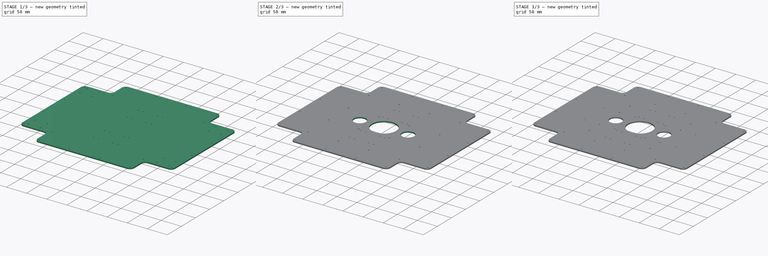
[diagram: build sequence overview — one tinted view per stage of 3, left to right]
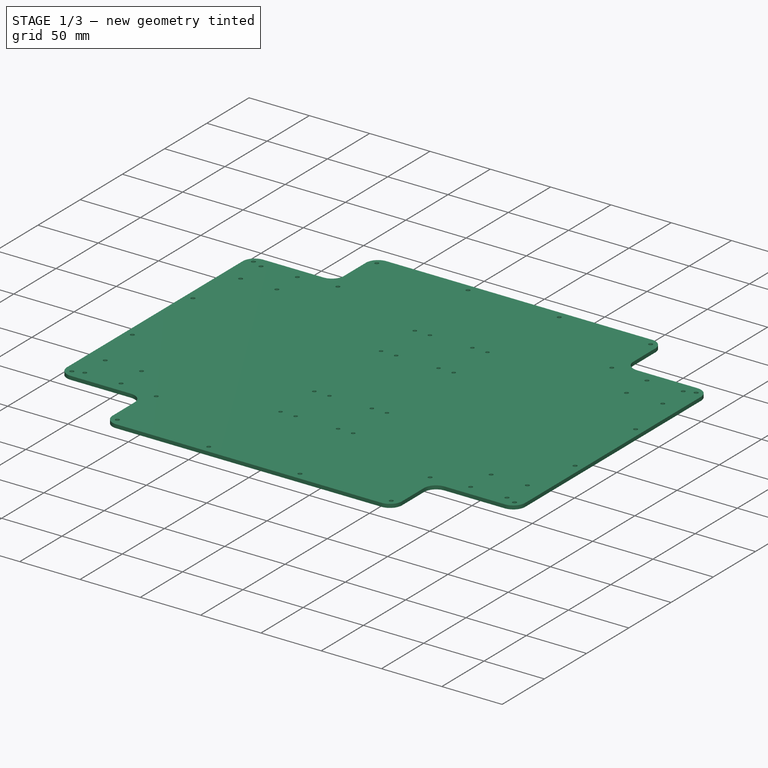
[diagram: stage 1 of 3 — iso view after this stage's code; geometry added in this stage tinted green]
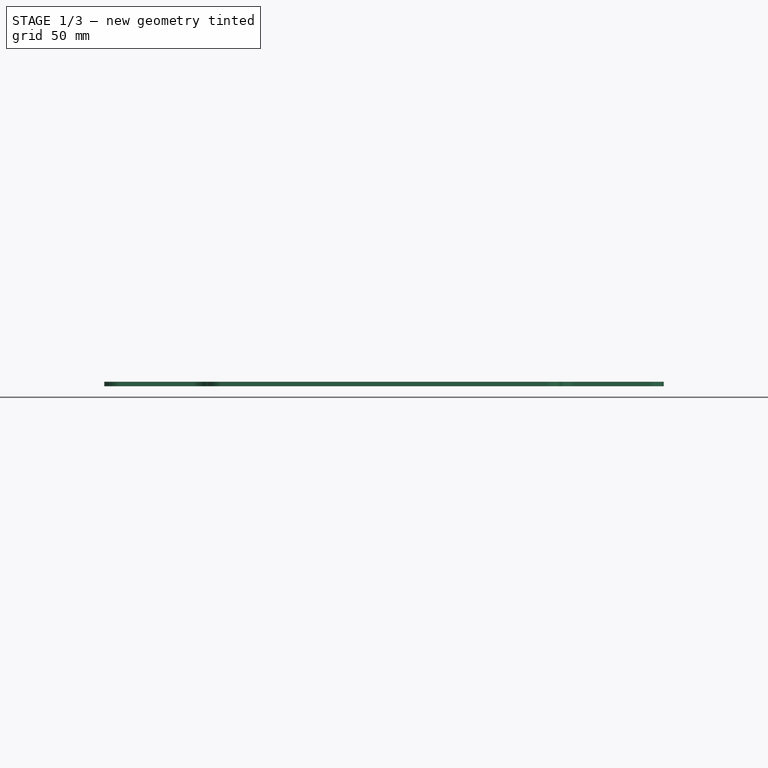
[diagram: stage 1 of 3 — front view after this stage's code; geometry added in this stage tinted green]
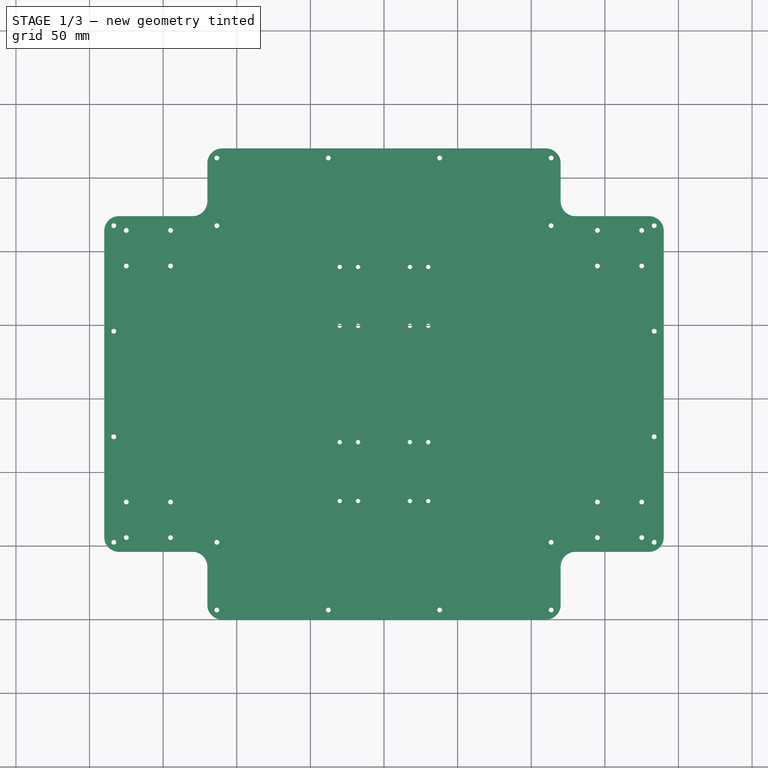
[diagram: stage 1 of 3 — top view after this stage's code; geometry added in this stage tinted green]
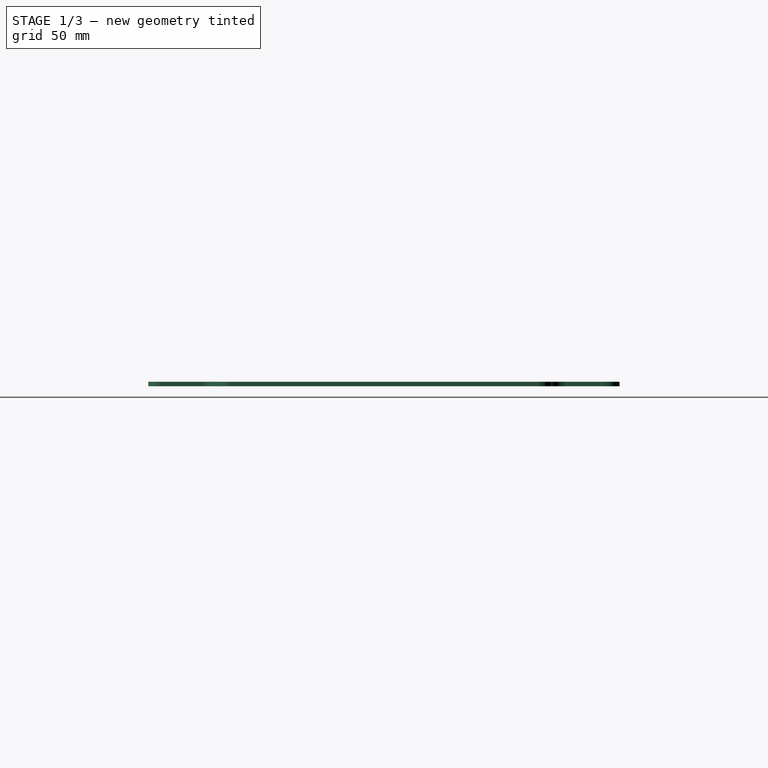
[diagram: stage 1 of 3 — right view after this stage's code; geometry added in this stage tinted green]
FCSTD DOCUMENT  (FreeCAD 1.0R39109 (Git))
Label: base_arriba_2
License: All rights reserved
LicenseURL: https://en.wikipedia.org/wiki/All_rights_reserved
objects: Sketcher::SketchObject×6, PartDesign::Pocket×5, Part::Feature×1, PartDesign::FeatureBase×1, PartDesign::Pad×1, PartDesign::Body×1
note: 34 computed .brp shape members not serialized (recipe doc carries the construction recipe); baked Part::Feature solids carry a one-line shape summary decoded from their .brp

FEATURE [Part::Feature] Part__Feature  label="base_abajo v9"
  shape: bbox 380 x 320 x 3 mm, 62 faces (baked)
FEATURE [PartDesign::FeatureBase] BaseFeature
  BaseFeature = -> Part__Feature
  Suppressed = false
FEATURE [Sketcher::SketchObject] Sketch
  ArcFitTolerance = 1e-06
  AttachmentSupport = -> [BaseFeature]
  ExternalGeometry = -> [BaseFeature]
  FullyConstrained = false
  MakeInternals = false
  MapMode = 5
  Placement = pos=(0,0,3) rot=(0,0,1;0rad)
  sketch-geometry (30):
    g0: LineSegment [constr] StartX=-190 StartY=160 StartZ=0 EndX=190 EndY=160 EndZ=0
    g1: Circle [constr] CenterX=-8.6e-15 CenterY=160 CenterZ=0 NormalX=0 NormalY=0 NormalZ=1 AngleXU=0 Radius=32
    g2: LineSegment [constr] StartX=-8.6e-15 StartY=160 StartZ=0 EndX=-8.6e-15 EndY=128 EndZ=0
    g3: LineSegment [constr] StartX=-8.6e-15 StartY=160 StartZ=0 EndX=-8.6e-15 EndY=192 EndZ=0
    g4: LineSegment [constr] StartX=-8.6e-15 StartY=192 StartZ=0 EndX=0 EndY=194.5 EndZ=0
    g5: LineSegment [constr] StartX=0 StartY=194.5 StartZ=0 EndX=35.1 EndY=194.5 EndZ=0
    g6: LineSegment [constr] StartX=0 StartY=194.5 StartZ=0 EndX=-35.1 EndY=194.5 EndZ=0
    g7: LineSegment [constr] StartX=35.1 StartY=194.5 StartZ=0 EndX=35.1 EndY=199.5 EndZ=0
    g8: LineSegment [constr] StartX=35.1 StartY=199.5 StartZ=0 EndX=30.1 EndY=199.5 EndZ=0
    g9: LineSegment [constr] StartX=-35.1 StartY=194.5 StartZ=0 EndX=-35.1 EndY=199.5 EndZ=0
    g10: LineSegment [constr] StartX=-35.1 StartY=199.5 StartZ=0 EndX=-30.1 EndY=199.5 EndZ=0
    g11: Circle CenterX=30.1 CenterY=199.5 CenterZ=0 NormalX=0 NormalY=0 NormalZ=1 AngleXU=0 Radius=1.5
    g12: Circle CenterX=-30.1 CenterY=199.5 CenterZ=0 NormalX=0 NormalY=0 NormalZ=1 AngleXU=0 Radius=1.5
    g13: LineSegment [constr] StartX=30.1 StartY=199.5 StartZ=0 EndX=17.6 EndY=199.5 EndZ=0
    g14: LineSegment [constr] StartX=-30.1 StartY=199.5 StartZ=0 EndX=-17.6 EndY=199.5 EndZ=0
    g15: Circle CenterX=17.6 CenterY=199.5 CenterZ=0 NormalX=0 NormalY=0 NormalZ=1 AngleXU=0 Radius=1.5
    g16: Circle CenterX=-17.6 CenterY=199.5 CenterZ=0 NormalX=0 NormalY=0 NormalZ=1 AngleXU=0 Radius=1.5
    g17: LineSegment [constr] StartX=30.1 StartY=199.5 StartZ=0 EndX=30.1 EndY=239.5 EndZ=0
    g18: Circle CenterX=30.1 CenterY=239.5 CenterZ=0 NormalX=0 NormalY=0 NormalZ=1 AngleXU=0 Radius=1.5
    g19: Circle CenterX=17.6 CenterY=239.5 CenterZ=0 NormalX=0 NormalY=0 NormalZ=1 AngleXU=0 Radius=1.5
    g20: Circle CenterX=-17.6 CenterY=239.5 CenterZ=0 NormalX=0 NormalY=0 NormalZ=1 AngleXU=0 Radius=1.5
    g21: Circle CenterX=-30.1 CenterY=239.5 CenterZ=0 NormalX=0 NormalY=0 NormalZ=1 AngleXU=0 Radius=1.5
    g22: Circle CenterX=-30.1 CenterY=80.5 CenterZ=0 NormalX=0 NormalY=0 NormalZ=1 AngleXU=0 Radius=1.5
    g23: Circle CenterX=-17.6 CenterY=80.5 CenterZ=0 NormalX=0 NormalY=0 NormalZ=1 AngleXU=0 Radius=1.5
    g24: Circle CenterX=17.6 CenterY=80.5 CenterZ=0 NormalX=0 NormalY=0 NormalZ=1 AngleXU=0 Radius=1.5
    g25: Circle CenterX=30.1 CenterY=80.5 CenterZ=0 NormalX=0 NormalY=0 NormalZ=1 AngleXU=0 Radius=1.5
    g26: Circle CenterX=30.1 CenterY=120.5 CenterZ=0 NormalX=0 NormalY=0 NormalZ=1 AngleXU=0 Radius=1.5
    g27: Circle CenterX=17.6 CenterY=120.5 CenterZ=0 NormalX=0 NormalY=0 NormalZ=1 AngleXU=0 Radius=1.5
    g28: Circle CenterX=-17.6 CenterY=120.5 CenterZ=0 NormalX=0 NormalY=0 NormalZ=1 AngleXU=0 Radius=1.5
    g29: Circle CenterX=-30.1 CenterY=120.5 CenterZ=0 NormalX=0 NormalY=0 NormalZ=1 AngleXU=0 Radius=1.5
  constraints (68):
    c: Symmetric(g-3,g-3,g0)
    c: Symmetric(g-4,g-4,g0)
    c: Diameter(g1) = 64
    c: Symmetric(g0,g0,g1)
    c: Coincident(g2,g1)
    c: PointOnObject(g2,g1)
    c: Vertical(g2)
    c: Coincident(g3,g1)
    c: PointOnObject(g3,g1)
    c: Vertical(g3)
    c: Distance(g4) = 2.5
    c: Coincident(g4,g3)
    c: PointOnObject(g4,g-2)
    c: Distance(g5) = 35.1
    c: Coincident(g5,g4)
    c: Horizontal(g5)
    c: Coincident(g6,g4)
    c: Horizontal(g6)
    c: Equal(g6,g5)
    c: Distance(g7) = 5
    c: Coincident(g7,g5)
    c: Vertical(g7)
    c: Distance(g8) = 5
    c: Coincident(g8,g7)
    c: Horizontal(g8)
    c: Coincident(g9,g6)
    c: Vertical(g9)
    c: Equal(g9,g7)
    c: Coincident(g10,g9)
    c: Horizontal(g10)
    c: Equal(g10,g8)
    c: Diameter(g11) = 3
    c: Coincident(g11,g8)
    c: Coincident(g12,g10)
    c: Equal(g12,g11)
    c: Distance(g13) = 12.5
    c: Coincident(g13,g8)
    c: Horizontal(g13)
    c: Coincident(g14,g10)
    c: Horizontal(g14)
    c: Equal(g14,g13)
    c: Coincident(g15,g13)
    c: Coincident(g16,g14)
    c: Equal(g15,g11)
    c: Equal(g16,g11)
    c: Distance(g17) = 40
    c: Coincident(g17,g8)
    c: Vertical(g17)
    c: Diameter(g18) = 3
    c: Equal(g21,g18)
    c: Equal(g19,g18)
    c: Equal(g20,g18)
    c: Equal(g11,g26)
    c: Symmetric(g11,g26,g0)
    c: Equal(g12,g29)
    c: Symmetric(g12,g29,g0)
    c: Equal(g15,g27)
    c: Symmetric(g15,g27,g0)
    c: Equal(g16,g28)
    c: Symmetric(g16,g28,g0)
    c: Equal(g18,g25)
    c: Symmetric(g18,g25,g0)
    c: Equal(g19,g24)
    c: Symmetric(g19,g24,g0)
    c: Equal(g20,g23)
    c: Symmetric(g20,g23,g0)
    c: Equal(g21,g22)
    c: Symmetric(g21,g22,g0)
FEATURE [PartDesign::Pocket] Pocket
  BaseFeature = -> BaseFeature
  Direction = (0,0,-1)
  Length = 16
  Length2 = 5
  Profile = -> Sketch
  ReferenceAxis = -> Sketch [N_Axis]
  Refine = true
  Suppressed = false
  Type = 0
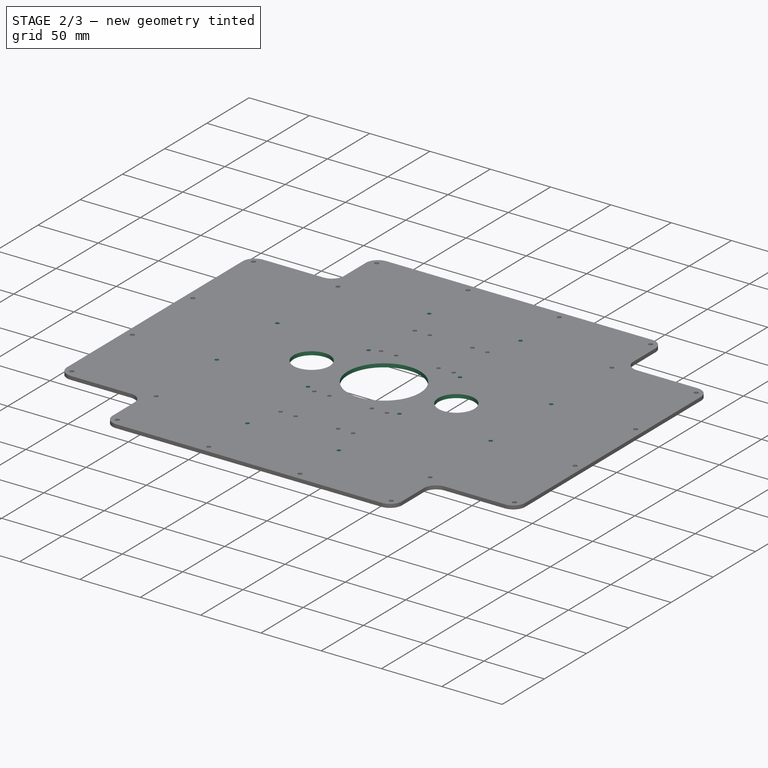
[diagram: stage 2 of 3 — iso view after this stage's code; geometry added in this stage tinted green]
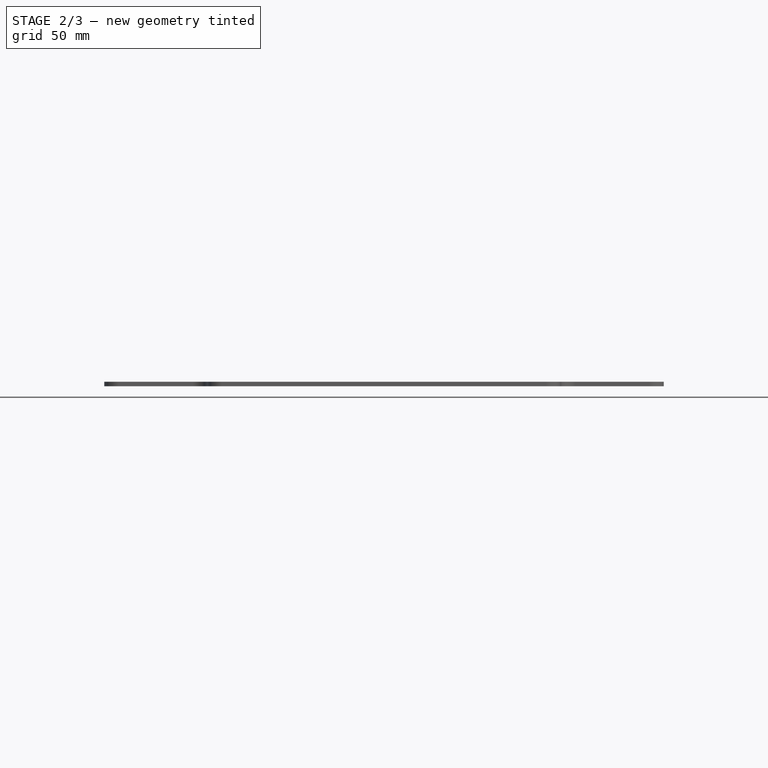
[diagram: stage 2 of 3 — front view after this stage's code; geometry added in this stage tinted green]
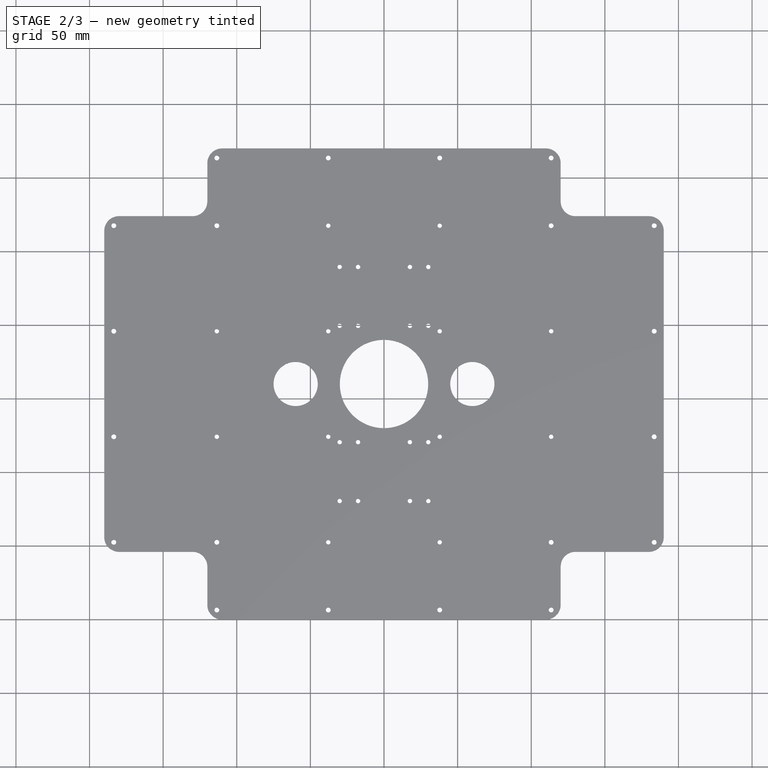
[diagram: stage 2 of 3 — top view after this stage's code; geometry added in this stage tinted green]
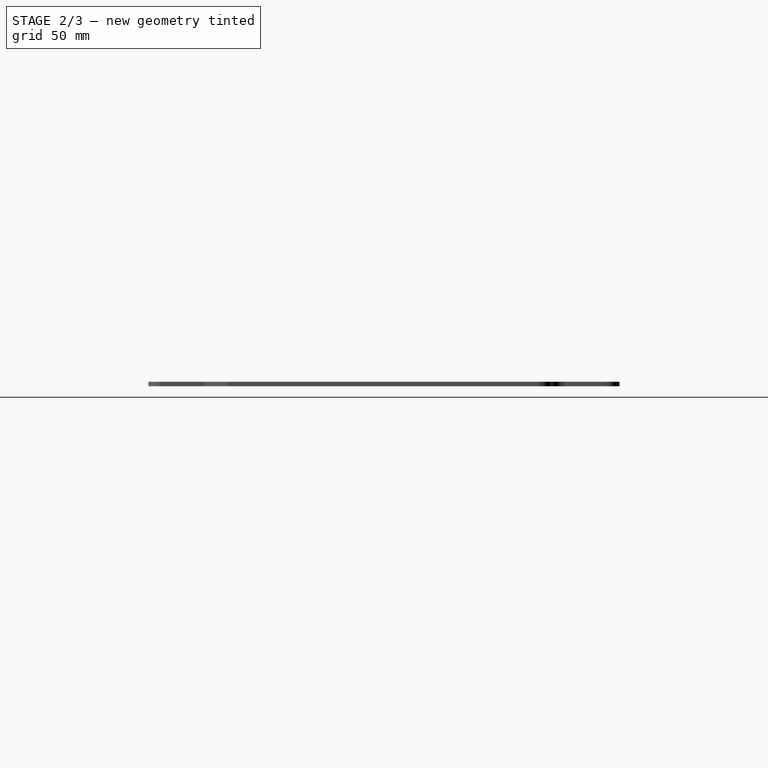
[diagram: stage 2 of 3 — right view after this stage's code; geometry added in this stage tinted green]
FEATURE [Sketcher::SketchObject] Sketch001
  ArcFitTolerance = 1e-06
  AttachmentSupport = -> [Pocket]
  FullyConstrained = false
  MakeInternals = false
  MapMode = 5
  Placement = pos=(0,0,3) rot=(0,0,1;0rad)
  sketch-geometry (16):
    g0: Circle CenterX=-174.952 CenterY=264.264 CenterZ=0 NormalX=0 NormalY=0 NormalZ=1 AngleXU=0 Radius=6.50774
    g1: Circle CenterX=-145.85 CenterY=264.733 CenterZ=0 NormalX=0 NormalY=0 NormalZ=1 AngleXU=0 Radius=4.83261
    g2: Circle CenterX=-144.286 CenterY=240.325 CenterZ=0 NormalX=0 NormalY=0 NormalZ=1 AngleXU=0 Radius=7.06852
    g3: Circle CenterX=-174.952 CenterY=240.481 CenterZ=0 NormalX=0 NormalY=0 NormalZ=1 AngleXU=0 Radius=3.12923
    g4: Circle CenterX=-175.122 CenterY=55.416 CenterZ=0 NormalX=0 NormalY=0 NormalZ=1 AngleXU=0 Radius=3.84585
    g5: Circle CenterX=-175.504 CenterY=79.686 CenterZ=0 NormalX=0 NormalY=0 NormalZ=1 AngleXU=0 Radius=3.92109
    g6: Circle CenterX=-145.119 CenterY=79.4949 CenterZ=0 NormalX=0 NormalY=0 NormalZ=1 AngleXU=0 Radius=4.64971
    g7: Circle CenterX=-145.692 CenterY=55.0338 CenterZ=0 NormalX=0 NormalY=0 NormalZ=1 AngleXU=0 Radius=5.59443
    g8: Circle CenterX=176.523 CenterY=264.39 CenterZ=0 NormalX=0 NormalY=0 NormalZ=1 AngleXU=0 Radius=4.3388
    g9: Circle CenterX=175.115 CenterY=239.043 CenterZ=0 NormalX=0 NormalY=0 NormalZ=1 AngleXU=0 Radius=4.02262
    g10: Circle CenterX=145.231 CenterY=265.016 CenterZ=0 NormalX=0 NormalY=0 NormalZ=1 AngleXU=0 Radius=5.4019
    g11: Circle CenterX=145.074 CenterY=239.982 CenterZ=0 NormalX=0 NormalY=0 NormalZ=1 AngleXU=0 Radius=5.74449
    g12: Circle CenterX=174.451 CenterY=54.9336 CenterZ=0 NormalX=0 NormalY=0 NormalZ=1 AngleXU=0 Radius=5.73734
    g13: Circle CenterX=174.451 CenterY=81.7321 CenterZ=0 NormalX=0 NormalY=0 NormalZ=1 AngleXU=0 Radius=7.21792
    g14: Circle CenterX=145.941 CenterY=78.5961 CenterZ=0 NormalX=0 NormalY=0 NormalZ=1 AngleXU=0 Radius=6.58184
    g15: Circle CenterX=145.371 CenterY=55.5038 CenterZ=0 NormalX=0 NormalY=0 NormalZ=1 AngleXU=0 Radius=4.87997
FEATURE [PartDesign::Pad] Pad
  BaseFeature = -> Pocket
  Direction = (0,0,1)
  Length = 3
  Length2 = 10
  Profile = -> Sketch001
  ReferenceAxis = -> Sketch001 [N_Axis]
  Refine = true
  Reversed = true
  Suppressed = false
  Type = 0
FEATURE [Sketcher::SketchObject] Sketch002
  ArcFitTolerance = 1e-06
  AttachmentSupport = -> [Pad]
  ExternalGeometry = -> [Pad]
  FullyConstrained = true
  MakeInternals = false
  MapMode = 5
  Placement = pos=(0,0,3) rot=(0,0,1;0rad)
  sketch-geometry (8):
    g0: LineSegment [constr] StartX=0 StartY=320 StartZ=0 EndX=0 EndY=0 EndZ=0
    g1: Circle CenterX=0 CenterY=160 CenterZ=0 NormalX=0 NormalY=0 NormalZ=1 AngleXU=0 Radius=30
    g2: LineSegment [constr] StartX=-190 StartY=160 StartZ=0 EndX=0 EndY=160 EndZ=0
    g3: LineSegment [constr] StartX=190 StartY=160 StartZ=0 EndX=0 EndY=160 EndZ=0
    g4: LineSegment [constr] StartX=0 StartY=160 StartZ=0 EndX=-60 EndY=160 EndZ=0
    g5: Circle CenterX=-60 CenterY=160 CenterZ=0 NormalX=0 NormalY=0 NormalZ=1 AngleXU=0 Radius=15
    g6: LineSegment [constr] StartX=0 StartY=160 StartZ=0 EndX=60 EndY=160 EndZ=0
    g7: Circle CenterX=60 CenterY=160 CenterZ=0 NormalX=0 NormalY=0 NormalZ=1 AngleXU=0 Radius=15
  constraints (18):
    c: Symmetric(g-3,g-3,g0)
    c: Symmetric(g-4,g-4,g0)
    c: Symmetric(g0,g0,g1)
    c: Diameter(g1) = 60
    c: Symmetric(g-5,g-5,g2)
    c: Coincident(g2,g1)
    c: Symmetric(g-6,g-6,g3)
    c: Coincident(g3,g1)
    c: Distance(g4) = 60
    c: Coincident(g4,g1)
    c: PointOnObject(g4,g2)
    c: Coincident(g5,g4)
    c: Diameter(g5) = 30
    c: Distance(g6) = 60
    c: Coincident(g6,g1)
    c: PointOnObject(g6,g3)
    c: Coincident(g7,g6)
    c: Equal(g7,g5)
FEATURE [PartDesign::Pocket] Pocket001
  BaseFeature = -> Pad
  Direction = (0,0,-1)
  Length = 10
  Length2 = 5
  Profile = -> Sketch002
  ReferenceAxis = -> Sketch002 [N_Axis]
  Refine = true
  Suppressed = false
  Type = 0
FEATURE [Sketcher::SketchObject] Sketch003
  ArcFitTolerance = 1e-06
  AttachmentSupport = -> [Pocket001]
  ExternalGeometry = -> [Pocket001]
  FullyConstrained = false
  MakeInternals = false
  MapMode = 5
  Placement = pos=(0,0,3) rot=(0,0,1;0rad)
  sketch-geometry (26):
    g0: LineSegment [constr] StartX=-183.536 StartY=124.155 StartZ=0 EndX=183.536 EndY=124.155 EndZ=0
    g1: LineSegment [constr] StartX=-183.536 StartY=195.845 StartZ=0 EndX=183.536 EndY=195.845 EndZ=0
    g2: LineSegment [constr] StartX=-37.8452 StartY=313.536 StartZ=0 EndX=-37.8452 EndY=267.536 EndZ=0
    g3: LineSegment [constr] StartX=37.8452 StartY=313.536 StartZ=0 EndX=37.8452 EndY=267.536 EndZ=0
    g4: LineSegment [constr] StartX=113.536 StartY=267.536 StartZ=0 EndX=113.536 EndY=195.845 EndZ=0
    g5: LineSegment [constr] StartX=-113.536 StartY=267.536 StartZ=0 EndX=-113.536 EndY=195.845 EndZ=0
    g6: LineSegment [constr] StartX=113.536 StartY=52.4645 StartZ=0 EndX=-113.536 EndY=52.4645 EndZ=0
    g7: LineSegment [constr] StartX=113.536 StartY=267.536 StartZ=0 EndX=-113.536 EndY=267.536 EndZ=0
    g8: LineSegment [constr] StartX=-113.536 StartY=124.155 StartZ=0 EndX=-113.536 EndY=52.4645 EndZ=0
    g9: LineSegment [constr] StartX=-37.8452 StartY=195.845 StartZ=0 EndX=-37.8452 EndY=124.155 EndZ=0
    g10: LineSegment [constr] StartX=37.8452 StartY=195.845 StartZ=0 EndX=37.8452 EndY=124.155 EndZ=0
    g11: LineSegment [constr] StartX=113.536 StartY=124.155 StartZ=0 EndX=113.536 EndY=52.4645 EndZ=0
    g12: LineSegment [constr] StartX=37.8452 StartY=52.4645 StartZ=0 EndX=37.8452 EndY=6.46447 EndZ=0
    g13: LineSegment [constr] StartX=-37.8452 StartY=52.4645 StartZ=0 EndX=-37.8452 EndY=6.46447 EndZ=0
    g14: Circle CenterX=-113.536 CenterY=124.155 CenterZ=0 NormalX=0 NormalY=0 NormalZ=1 AngleXU=0 Radius=1.5
    g15: Circle CenterX=-113.536 CenterY=195.845 CenterZ=0 NormalX=0 NormalY=0 NormalZ=1 AngleXU=0 Radius=1.5
    g16: Circle CenterX=-37.8452 CenterY=195.845 CenterZ=0 NormalX=0 NormalY=0 NormalZ=1 AngleXU=0 Radius=1.5
    g17: Circle CenterX=-37.8452 CenterY=124.155 CenterZ=0 NormalX=0 NormalY=0 NormalZ=1 AngleXU=0 Radius=1.5
    g18: Circle CenterX=37.8452 CenterY=195.845 CenterZ=0 NormalX=0 NormalY=0 NormalZ=1 AngleXU=0 Radius=1.5
    g19: Circle CenterX=37.8452 CenterY=124.155 CenterZ=0 NormalX=0 NormalY=0 NormalZ=1 AngleXU=0 Radius=1.5
    g20: Circle CenterX=113.536 CenterY=124.155 CenterZ=0 NormalX=0 NormalY=0 NormalZ=1 AngleXU=0 Radius=1.5
    g21: Circle CenterX=113.536 CenterY=195.845 CenterZ=0 NormalX=0 NormalY=0 NormalZ=1 AngleXU=0 Radius=1.5
    g22: Circle CenterX=37.8452 CenterY=267.536 CenterZ=0 NormalX=0 NormalY=0 NormalZ=1 AngleXU=0 Radius=1.5
    g23: Circle CenterX=-37.8452 CenterY=267.536 CenterZ=0 NormalX=0 NormalY=0 NormalZ=1 AngleXU=0 Radius=1.5
    g24: Circle CenterX=-37.8452 CenterY=52.4645 CenterZ=0 NormalX=0 NormalY=0 NormalZ=1 AngleXU=0 Radius=1.5
    g25: Circle CenterX=37.8452 CenterY=52.4645 CenterZ=0 NormalX=0 NormalY=0 NormalZ=1 AngleXU=0 Radius=1.5
  constraints (52):
    c: Coincident(g0,g-4)
    c: Coincident(g0,g-5)
    c: Coincident(g1,g-3)
    c: Coincident(g1,g-6)
    c: Coincident(g2,g-7)
    c: Coincident(g13,g-10)
    c: Coincident(g3,g-8)
    c: Coincident(g12,g-11)
    c: Coincident(g4,g-14)
    c: Coincident(g11,g-13)
    c: Coincident(g5,g-15)
    c: Coincident(g8,g-12)
    c: Coincident(g6,g11)
    c: Coincident(g6,g8)
    c: Coincident(g7,g4)
    c: Coincident(g7,g5)
    c: PointOnObject(g5,g1)
    c: PointOnObject(g8,g0)
    c: PointOnObject(g2,g7)
    c: PointOnObject(g9,g1)
    c: PointOnObject(g3,g7)
    c: PointOnObject(g10,g1)
    c: PointOnObject(g4,g1)
    c: PointOnObject(g11,g0)
    c: PointOnObject(g10,g0)
    c: PointOnObject(g12,g6)
    c: PointOnObject(g9,g0)
    c: PointOnObject(g13,g6)
    c: Coincident(g14,g8)
    c: Diameter(g14) = 3
    c: Coincident(g15,g5)
    c: Coincident(g16,g9)
    c: Coincident(g17,g9)
    c: Coincident(g18,g10)
    c: Coincident(g19,g10)
    c: Coincident(g20,g11)
    c: Coincident(g21,g4)
    c: Coincident(g22,g3)
    c: Coincident(g23,g2)
    c: Coincident(g24,g13)
    c: Coincident(g25,g12)
    c: Equal(g15,g14)
    c: Equal(g16,g15)
    c: Equal(g17,g16)
    c: Equal(g18,g16)
    c: Equal(g19,g17)
    c: Equal(g23,g16)
    c: Equal(g22,g16)
    c: Equal(g21,g18)
    c: Equal(g20,g19)
    c: Equal(g24,g17)
    c: Equal(g25,g19)
FEATURE [PartDesign::Pocket] Pocket002
  BaseFeature = -> Pocket001
  Direction = (0,0,-1)
  Length = 11
  Length2 = 5
  Profile = -> Sketch003
  ReferenceAxis = -> Sketch003 [N_Axis]
  Refine = true
  Suppressed = false
  Type = 0
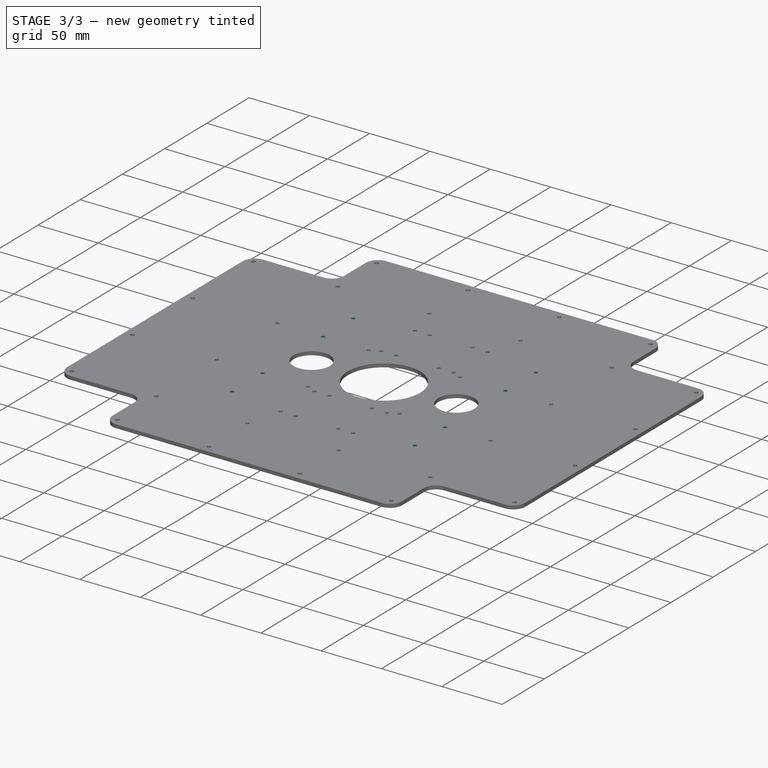
[diagram: stage 3 of 3 — iso view after this stage's code; geometry added in this stage tinted green]
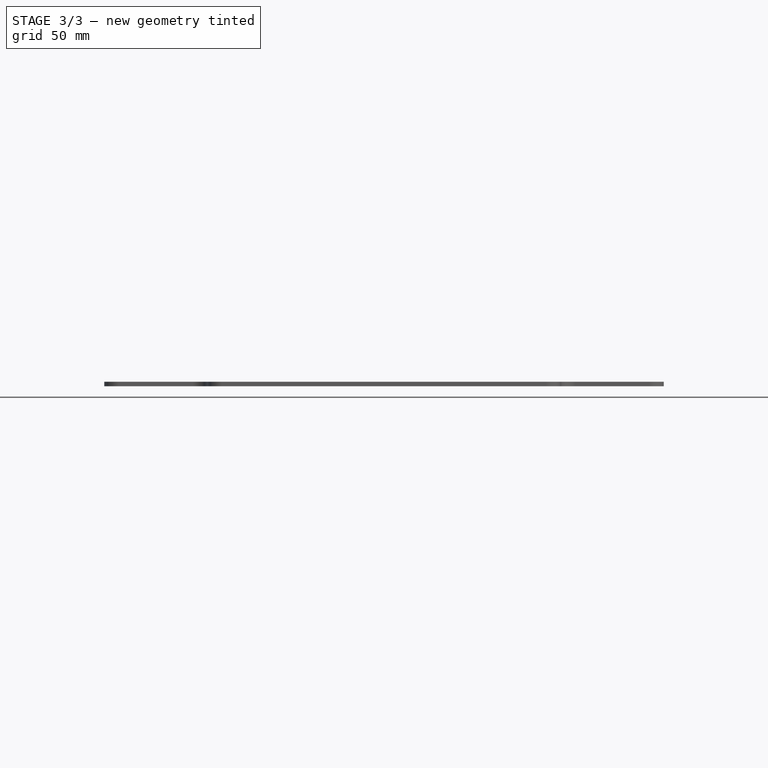
[diagram: stage 3 of 3 — front view after this stage's code; geometry added in this stage tinted green]
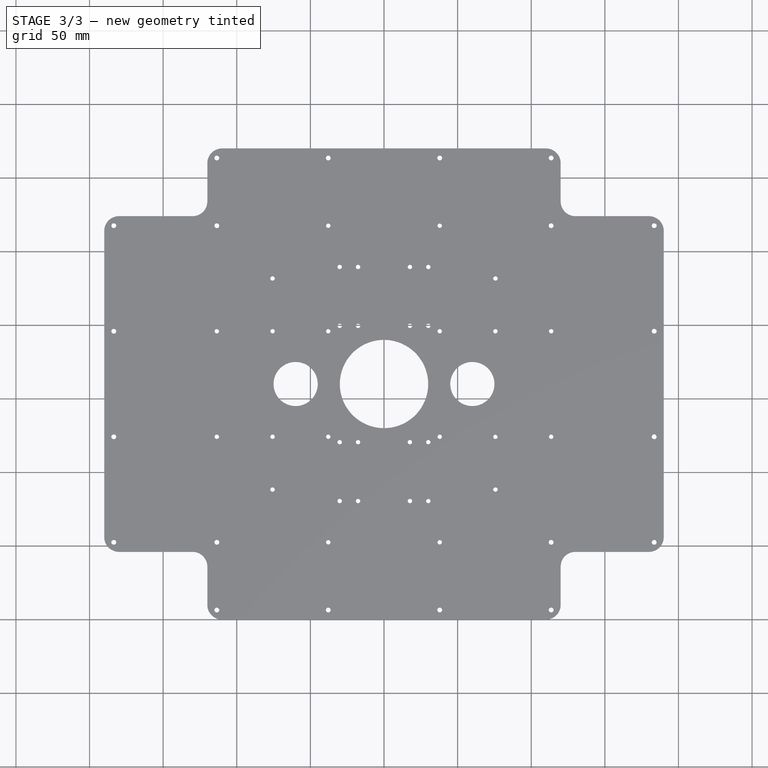
[diagram: stage 3 of 3 — top view after this stage's code; geometry added in this stage tinted green]
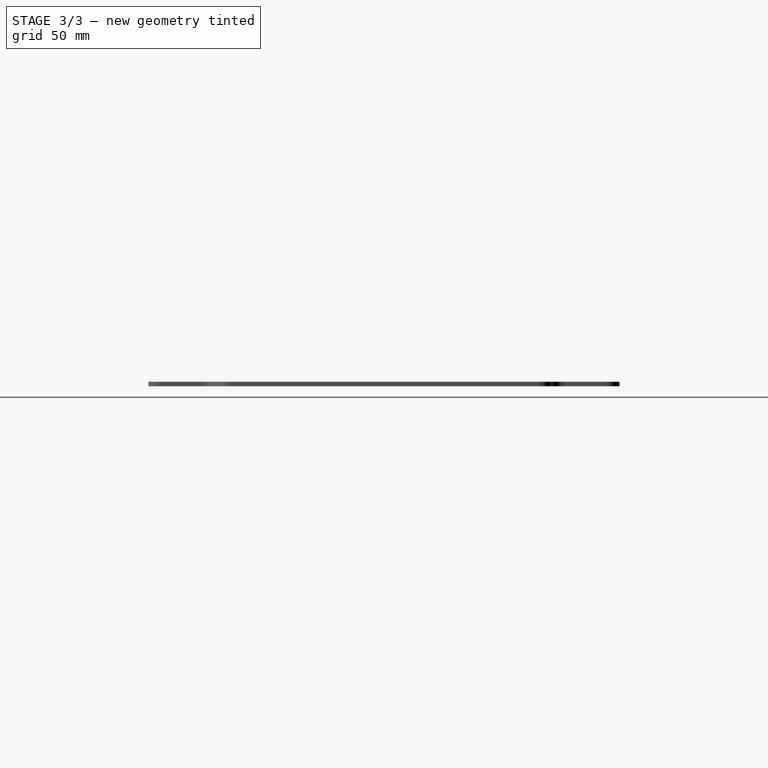
[diagram: stage 3 of 3 — right view after this stage's code; geometry added in this stage tinted green]
FEATURE [Sketcher::SketchObject] Sketch004
  ArcFitTolerance = 1e-06
  AttachmentSupport = -> [Pocket002]
  ExternalGeometry = -> [Pocket002]
  FullyConstrained = false
  MakeInternals = false
  MapMode = 5
  Placement = pos=(0,0,3) rot=(0,0,1;0rad)
  sketch-geometry (16):
    g0: LineSegment [constr] StartX=-113.536 StartY=267.536 StartZ=0 EndX=-112.338 EndY=266.401 EndZ=0
    g1: LineSegment [constr] StartX=-113.536 StartY=195.845 StartZ=0 EndX=-37.8452 EndY=267.536 EndZ=0
    g2: LineSegment [constr] StartX=37.8452 StartY=267.536 StartZ=0 EndX=113.536 EndY=195.845 EndZ=0
    g3: LineSegment [constr] StartX=113.536 StartY=267.536 StartZ=0 EndX=112.338 EndY=266.401 EndZ=0
    g4: LineSegment [constr] StartX=-37.8452 StartY=52.4645 StartZ=0 EndX=-113.536 EndY=124.155 EndZ=0
    g5: LineSegment [constr] StartX=-113.536 StartY=52.4645 StartZ=0 EndX=-112.338 EndY=53.5991 EndZ=0
    g6: LineSegment [constr] StartX=113.536 StartY=52.4645 StartZ=0 EndX=112.338 EndY=53.5991 EndZ=0
    g7: LineSegment [constr] StartX=37.8452 StartY=52.4645 StartZ=0 EndX=113.536 EndY=124.155 EndZ=0
    g8: LineSegment [constr] StartX=-75.6904 StartY=231.69 StartZ=0 EndX=-37.8452 EndY=195.845 EndZ=0
    g9: LineSegment [constr] StartX=-75.6904 StartY=88.3096 StartZ=0 EndX=-37.8452 EndY=124.155 EndZ=0
    g10: LineSegment [constr] StartX=75.6904 StartY=88.3096 StartZ=0 EndX=37.8452 EndY=124.155 EndZ=0
    g11: LineSegment [constr] StartX=75.6904 StartY=231.69 StartZ=0 EndX=37.8452 EndY=195.845 EndZ=0
    g12: Circle CenterX=-75.6904 CenterY=231.69 CenterZ=0 NormalX=0 NormalY=0 NormalZ=1 AngleXU=0 Radius=1.5
    g13: Circle CenterX=75.6904 CenterY=231.69 CenterZ=0 NormalX=0 NormalY=0 NormalZ=1 AngleXU=0 Radius=1.5
    g14: Circle CenterX=-75.6904 CenterY=88.3096 CenterZ=0 NormalX=0 NormalY=0 NormalZ=1 AngleXU=0 Radius=1.5
    g15: Circle CenterX=75.6904 CenterY=88.3096 CenterZ=0 NormalX=0 NormalY=0 NormalZ=1 AngleXU=0 Radius=1.5
  constraints (32):
    c: Coincident(g0,g-3)
    c: Coincident(g8,g-4)
    c: Coincident(g1,g-6)
    c: Coincident(g1,g-5)
    c: Coincident(g2,g-7)
    c: Coincident(g2,g-10)
    c: Coincident(g3,g-9)
    c: Coincident(g11,g-8)
    c: Coincident(g4,g-12)
    c: Coincident(g4,g-11)
    c: Coincident(g5,g-13)
    c: Coincident(g9,g-14)
    c: Coincident(g6,g-15)
    c: Coincident(g10,g-16)
    c: Coincident(g7,g-17)
    c: Coincident(g7,g-18)
    c: PointOnObject(g0,g-3)
    c: PointOnObject(g8,g1)
    c: PointOnObject(g5,g-13)
    c: PointOnObject(g9,g4)
    c: PointOnObject(g6,g-15)
    c: PointOnObject(g10,g7)
    c: PointOnObject(g3,g-9)
    c: PointOnObject(g11,g2)
    c: Coincident(g12,g8)
    c: Diameter(g12) = 3
    c: Coincident(g13,g11)
    c: Coincident(g14,g9)
    c: Coincident(g15,g10)
    c: Equal(g13,g12)
    c: Equal(g15,g13)
    c: Equal(g14,g12)
FEATURE [PartDesign::Pocket] Pocket003
  BaseFeature = -> Pocket002
  Direction = (0,0,-1)
  Length = 9
  Length2 = 5
  Profile = -> Sketch004
  ReferenceAxis = -> Sketch004 [N_Axis]
  Refine = true
  Suppressed = false
  Type = 0
FEATURE [Sketcher::SketchObject] Sketch005
  ArcFitTolerance = 1e-06
  AttachmentSupport = -> [Pocket003]
  ExternalGeometry = -> [Pocket003]
  FullyConstrained = true
  MakeInternals = false
  MapMode = 5
  Placement = pos=(0,0,3) rot=(0,0,1;0rad)
  sketch-geometry (10):
    g0: LineSegment [constr] StartX=-75.6904 StartY=231.69 StartZ=0 EndX=-75.6904 EndY=88.3096 EndZ=0
    g1: LineSegment [constr] StartX=-113.536 StartY=195.845 StartZ=0 EndX=-75.6904 EndY=195.845 EndZ=0
    g2: LineSegment [constr] StartX=-113.536 StartY=124.155 StartZ=0 EndX=-75.6904 EndY=124.155 EndZ=0
    g3: LineSegment [constr] StartX=75.6904 StartY=231.69 StartZ=0 EndX=75.6904 EndY=88.3096 EndZ=0
    g4: LineSegment [constr] StartX=113.536 StartY=124.155 StartZ=0 EndX=75.6904 EndY=124.155 EndZ=0
    g5: LineSegment [constr] StartX=113.536 StartY=195.845 StartZ=0 EndX=75.6904 EndY=195.845 EndZ=0
    g6: Circle CenterX=-75.6904 CenterY=195.845 CenterZ=0 NormalX=0 NormalY=0 NormalZ=1 AngleXU=0 Radius=1.5
    g7: Circle CenterX=-75.6904 CenterY=124.155 CenterZ=0 NormalX=0 NormalY=0 NormalZ=1 AngleXU=0 Radius=1.5
    g8: Circle CenterX=75.6904 CenterY=124.155 CenterZ=0 NormalX=0 NormalY=0 NormalZ=1 AngleXU=0 Radius=1.5
    g9: Circle CenterX=75.6904 CenterY=195.845 CenterZ=0 NormalX=0 NormalY=0 NormalZ=1 AngleXU=0 Radius=1.5
  constraints (24):
    c: Coincident(g0,g-4)
    c: Coincident(g0,g-3)
    c: Coincident(g1,g-5)
    c: PointOnObject(g1,g0)
    c: Horizontal(g1)
    c: Coincident(g2,g-6)
    c: PointOnObject(g2,g0)
    c: Horizontal(g2)
    c: Coincident(g3,g-9)
    c: Coincident(g3,g-11)
    c: Coincident(g4,g-7)
    c: PointOnObject(g4,g3)
    c: Horizontal(g4)
    c: Coincident(g5,g-8)
    c: PointOnObject(g5,g3)
    c: Horizontal(g5)
    c: Coincident(g6,g1)
    c: Diameter(g6) = 3
    c: Coincident(g7,g2)
    c: Coincident(g8,g4)
    c: Coincident(g9,g5)
    c: Equal(g9,g6)
    c: Equal(g7,g6)
    c: Equal(g8,g6)
FEATURE [PartDesign::Pocket] Pocket004
  BaseFeature = -> Pocket003
  Direction = (0,0,-1)
  Length = 10
  Length2 = 5
  Profile = -> Sketch005
  ReferenceAxis = -> Sketch005 [N_Axis]
  Refine = true
  Suppressed = false
  Type = 0
FEATURE [PartDesign::Body] Body
  AllowCompound = false
  BaseFeature = -> Part__Feature
  Group = -> [BaseFeature,Sketch,Pocket,Sketch001,Pad,Sketch002,Pocket001,Sketch003,Pocket002,Sketch004,Pocket003,Sketch005,Pocket004]
  Origin = -> Origin
  Tip = -> Pocket004
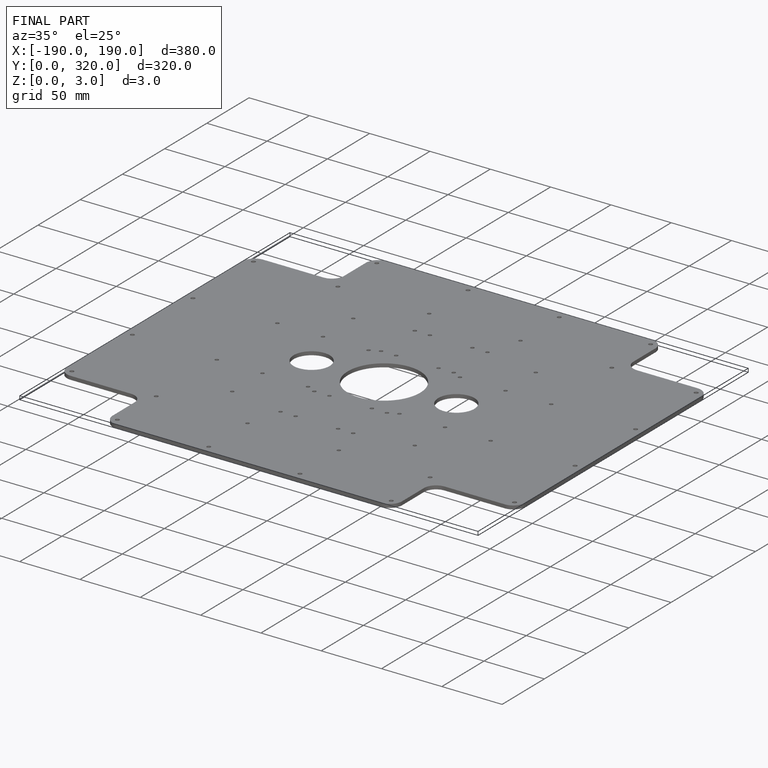
[diagram: finished part — iso view with bounding-box wireframe]
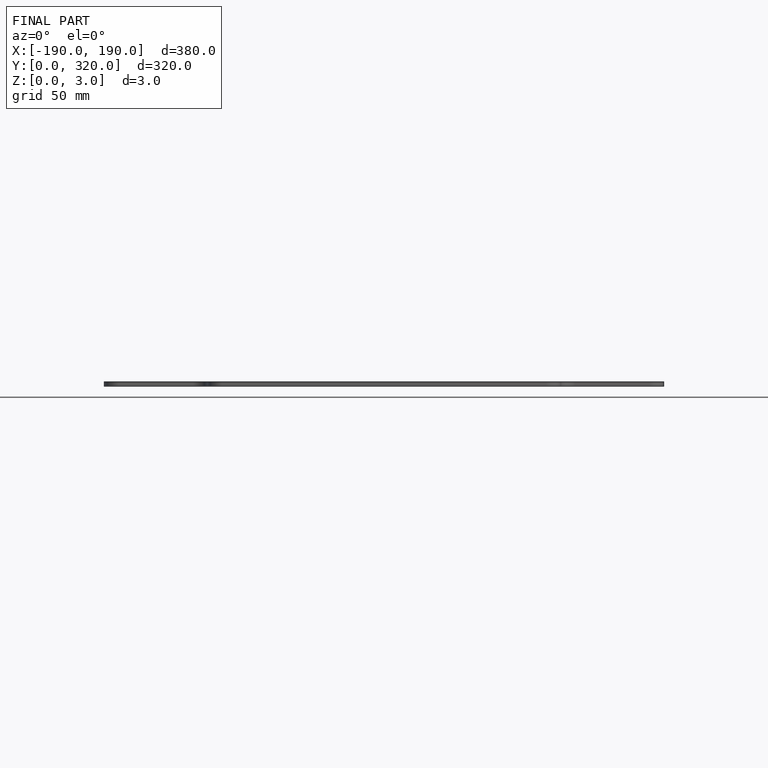
[diagram: finished part — front view with bounding-box wireframe]
